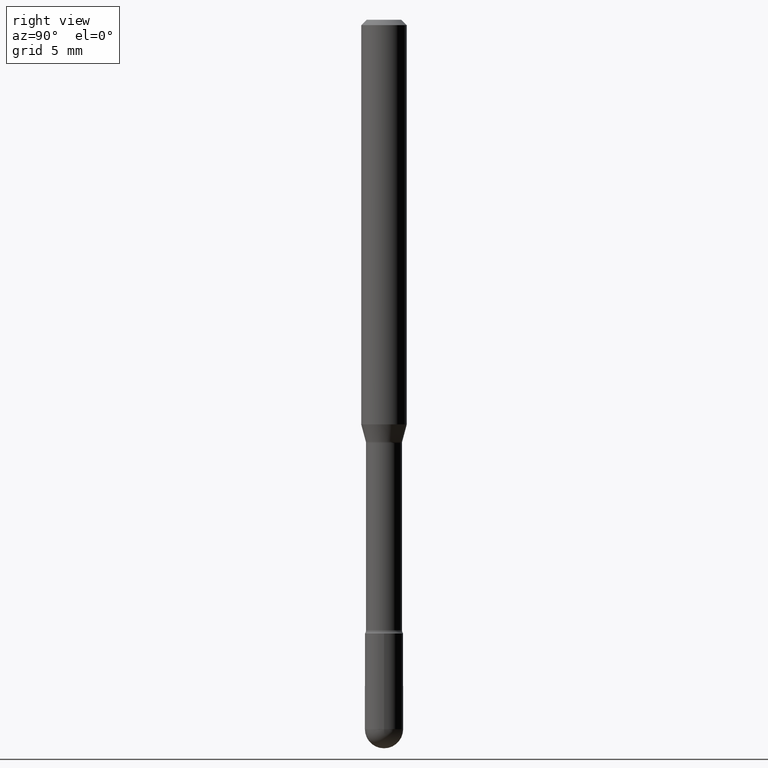
[diagram: clean part render]
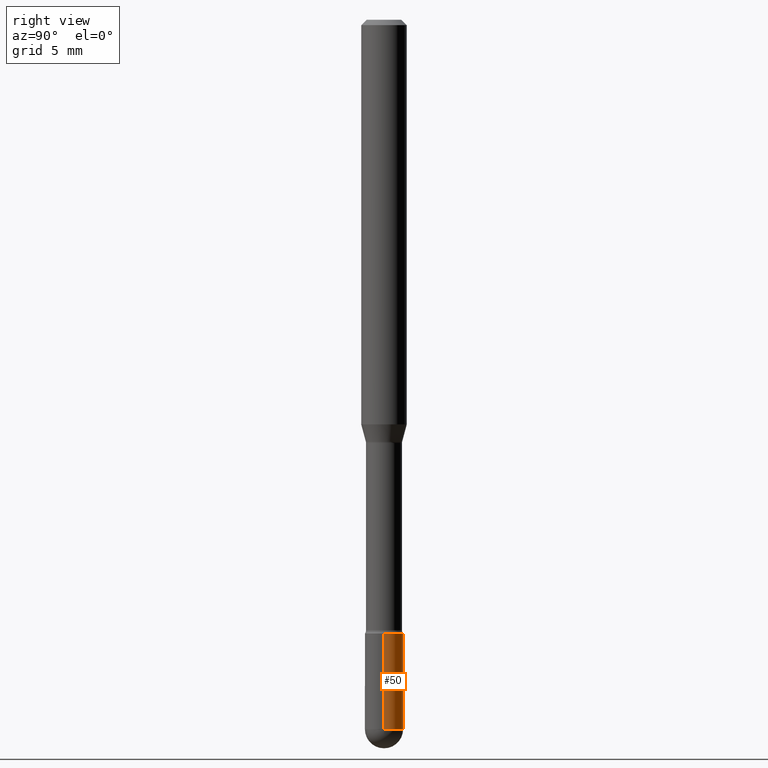
[diagram: same view with one face highlighted and labeled with its STEP entity id]
A machine part, right view. The second image highlights one B-rep face of the part: STEP entity #50.
In plain terms, the highlighted cylindrical surface (edge-blend (fillet) strip) has radius 1.3335 mm, axis along (-0, 0, 1).
Its self-contained STEP definition (entity closure, byte-faithful):
#12 = ORIENTED_EDGE ( 'NONE', *, *, #94, .F. ) ;
#14 = VECTOR ( 'NONE', #418, 39.37007874015748143 ) ;
#35 = CARTESIAN_POINT ( 'NONE',  ( 4.762550500045553141E-29, -6.799659907397026191E-15, -1.947500000000000009 ) ) ;
#47 = AXIS2_PLACEMENT_3D ( 'NONE', #35, #63, #325 ) ;
#50 = ADVANCED_FACE ( 'NONE', ( #419 ), #213, .T. ) ;
#57 = VERTEX_POINT ( 'NONE', #260 ) ;
#63 = DIRECTION ( 'NONE',  ( -2.445468806185136597E-29, 3.491481338843145583E-15, 1.000000000000000000 ) ) ;
#67 = ORIENTED_EDGE ( 'NONE', *, *, #359, .F. ) ;
#74 = ORIENTED_EDGE ( 'NONE', *, *, #376, .T. ) ;
#87 = CARTESIAN_POINT ( 'NONE',  ( -0.05249999999999999806, -5.968368045399809642E-15, -1.684999999999999831 ) ) ;
#92 = VECTOR ( 'NONE', #214, 39.37007874015748143 ) ;
#94 = EDGE_CURVE ( 'NONE', #358, #57, #489, .T. ) ;
#99 = VERTEX_POINT ( 'NONE', #327 ) ;
#111 = DIRECTION ( 'NONE',  ( -2.445468806185136597E-29, 3.491481338843145583E-15, 1.000000000000000000 ) ) ;
#150 = CARTESIAN_POINT ( 'NONE',  ( 0.05249999999999999806, -6.708008522252392915E-15, -1.947500000000000009 ) ) ;
#168 = DIRECTION ( 'NONE',  ( 1.000000000000000000, -6.982962677686268288E-15, 0.000000000000000000 ) ) ;
#184 = CIRCLE ( 'NONE', #47, 0.05249999999999999806 ) ;
#207 = DIRECTION ( 'NONE',  ( -2.445468806185136597E-29, 3.491481338843145583E-15, 1.000000000000000000 ) ) ;
#210 = CARTESIAN_POINT ( 'NONE',  ( 4.762550500045553141E-29, -6.799659907397026191E-15, -1.947500000000000009 ) ) ;
#213 = CYLINDRICAL_SURFACE ( 'NONE', #264, 0.05249999999999999806 ) ;
#214 = DIRECTION ( 'NONE',  ( -2.445468806185136877E-29, 3.491481338843145188E-15, 1.000000000000000000 ) ) ;
#217 = EDGE_CURVE ( 'NONE', #358, #315, #184, .T. ) ;
#227 = AXIS2_PLACEMENT_3D ( 'NONE', #210, #522, #384 ) ;
#260 = CARTESIAN_POINT ( 'NONE',  ( 0.05249999999999999806, -6.249751596529228901E-15, -1.684999999999999831 ) ) ;
#261 = CARTESIAN_POINT ( 'NONE',  ( 0.05249999999999999806, -3.666055405785289629E-16, 2.559992807292866011E-30 ) ) ;
#264 = AXIS2_PLACEMENT_3D ( 'NONE', #520, #207, #488 ) ;
#287 = CARTESIAN_POINT ( 'NONE',  ( 3.666055405785766396E-16, 0.05249999999999320488, -1.947500000000000231 ) ) ;
#299 = CARTESIAN_POINT ( 'NONE',  ( -0.05249999999999999806, 3.730349362740525838E-16, -2.582440922383825311E-30 ) ) ;
#315 = VERTEX_POINT ( 'NONE', #287 ) ;
#321 = CARTESIAN_POINT ( 'NONE',  ( 4.120614938421955121E-29, -5.883146055950699741E-15, -1.684999999999999831 ) ) ;
#325 = DIRECTION ( 'NONE',  ( 1.000000000000000000, -6.982962677686268288E-15, 0.000000000000000000 ) ) ;
#327 = CARTESIAN_POINT ( 'NONE',  ( -0.05249999999999999806, -5.968368045399809642E-15, -1.947500000000000009 ) ) ;
#358 = VERTEX_POINT ( 'NONE', #150 ) ;
#359 = EDGE_CURVE ( 'NONE', #57, #411, #512, .T. ) ;
#362 = ORIENTED_EDGE ( 'NONE', *, *, #485, .T. ) ;
#376 = EDGE_CURVE ( 'NONE', #99, #411, #380, .T. ) ;
#380 = LINE ( 'NONE', #299, #14 ) ;
#384 = DIRECTION ( 'NONE',  ( 1.000000000000000000, -6.982962677686268288E-15, 0.000000000000000000 ) ) ;
#408 = CIRCLE ( 'NONE', #227, 0.05249999999999999806 ) ;
#411 = VERTEX_POINT ( 'NONE', #87 ) ;
#418 = DIRECTION ( 'NONE',  ( -2.445468806185136877E-29, 3.491481338843145188E-15, 1.000000000000000000 ) ) ;
#419 = FACE_OUTER_BOUND ( 'NONE', #542, .T. ) ;
#434 = AXIS2_PLACEMENT_3D ( 'NONE', #321, #111, #168 ) ;
#445 = ORIENTED_EDGE ( 'NONE', *, *, #217, .T. ) ;
#485 = EDGE_CURVE ( 'NONE', #315, #99, #408, .T. ) ;
#488 = DIRECTION ( 'NONE',  ( 1.000000000000000000, -6.982962677686265922E-15, 4.876176775795935232E-29 ) ) ;
#489 = LINE ( 'NONE', #261, #92 ) ;
#512 = CIRCLE ( 'NONE', #434, 0.05249999999999999806 ) ;
#520 = CARTESIAN_POINT ( 'NONE',  ( 0.000000000000000000, 0.000000000000000000, 0.000000000000000000 ) ) ;
#522 = DIRECTION ( 'NONE',  ( -2.445468806185136597E-29, 3.491481338843145583E-15, 1.000000000000000000 ) ) ;
#542 = EDGE_LOOP ( 'NONE', ( #362, #74, #67, #12, #445 ) ) ;